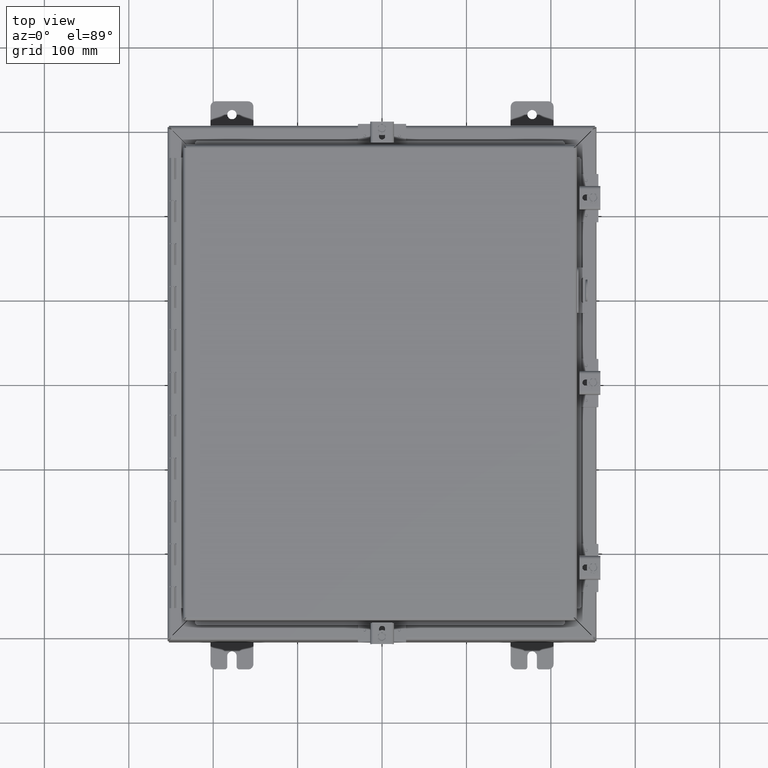
[diagram: clean part render]
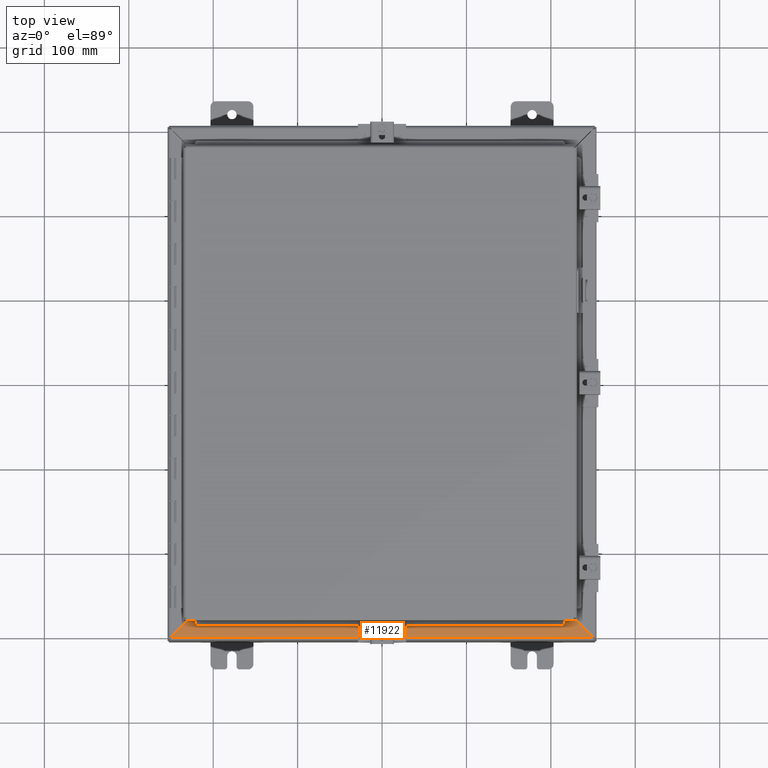
[diagram: same view with one face highlighted and labeled with its STEP entity id]
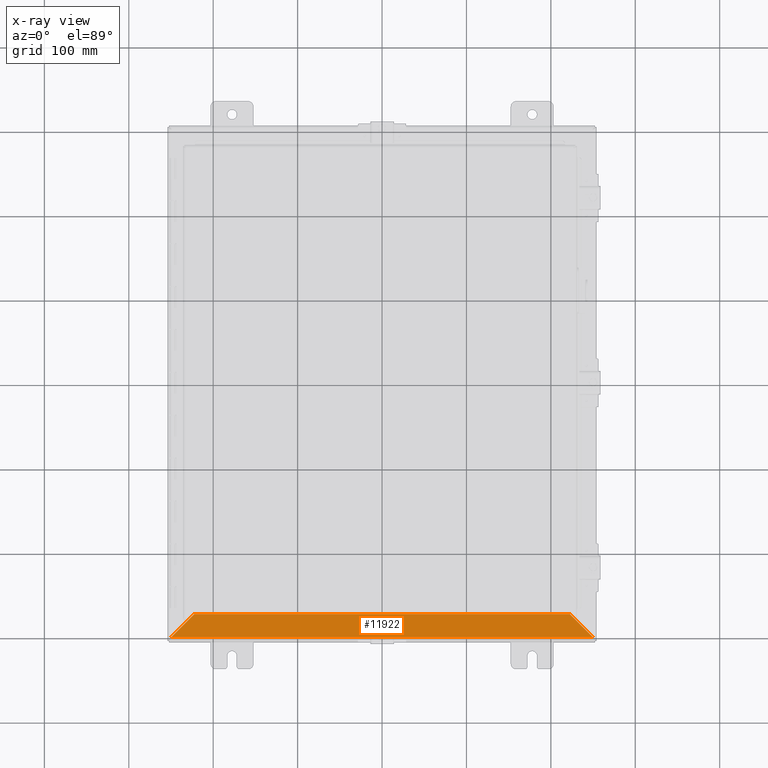
[diagram: x-ray of the same camera — body ghosted, the highlighted face saturated]
A machine part, top view. The second image highlights one B-rep face of the part: STEP entity #11922.
The next image is the same camera in x-ray: the body ghosted, the highlighted face saturated — about 0% of this face is hidden behind the body in this view.
In plain terms, the highlighted planar face has unit normal (-0, -0, -1).
Its self-contained STEP definition (entity closure, byte-faithful):
#1186=PLANE('',#12675);
#1588=FACE_OUTER_BOUND('',#2286,.T.);
#2286=EDGE_LOOP('',(#8650,#8651,#8652,#8653));
#3081=LINE('',#17476,#4160);
#3083=LINE('',#17511,#4162);
#3084=LINE('',#17512,#4163);
#3085=LINE('',#17513,#4164);
#4160=VECTOR('',#13973,17.5137806999101);
#4162=VECTOR('',#13977,19.6527806999101);
#4163=VECTOR('',#13978,1.51250140495802);
#4164=VECTOR('',#13979,1.51250140495802);
#5657=VERTEX_POINT('',#17474);
#5658=VERTEX_POINT('',#17475);
#5665=VERTEX_POINT('',#17509);
#5666=VERTEX_POINT('',#17510);
#6817=EDGE_CURVE('',#5657,#5658,#3081,.T.);
#6825=EDGE_CURVE('',#5665,#5666,#3083,.T.);
#6826=EDGE_CURVE('',#5657,#5666,#3084,.T.);
#6827=EDGE_CURVE('',#5665,#5658,#3085,.T.);
#8650=ORIENTED_EDGE('',*,*,#6825,.T.);
#8651=ORIENTED_EDGE('',*,*,#6826,.F.);
#8652=ORIENTED_EDGE('',*,*,#6817,.T.);
#8653=ORIENTED_EDGE('',*,*,#6827,.F.);
#11922=ADVANCED_FACE('',(#1588),#1186,.F.);
#12675=AXIS2_PLACEMENT_3D('',#17508,#13975,#13976);
#13973=DIRECTION('',(-1.,-1.56987949885448E-16,9.97654610727262E-18));
#13975=DIRECTION('center_axis',(-9.97654610727179E-18,-5.29671495844802E-15,
-1.));
#13976=DIRECTION('ref_axis',(-1.40877373263489E-16,1.,-4.51194637207664E-15));
#13977=DIRECTION('',(1.,1.40037230023149E-16,-9.97654610727252E-18));
#13978=DIRECTION('',(0.707106781186548,-0.707106781186548,2.44650205718945E-15));
#13979=DIRECTION('',(0.707106781186547,0.707106781186547,-2.44626643118222E-15));
#17474=CARTESIAN_POINT('',(8.75689034995503,-10.77775,6.));
#17475=CARTESIAN_POINT('',(-8.75689034995503,-10.77775,6.));
#17476=CARTESIAN_POINT('',(-4.37844517497751,-10.77775,6.));
#17508=CARTESIAN_POINT('Origin',(-8.31910028622545E-16,-11.3685559466454,
6.));
#17509=CARTESIAN_POINT('',(-9.82639034995502,-11.84725,6.));
#17510=CARTESIAN_POINT('',(9.82639034995502,-11.84725,6.));
#17511=CARTESIAN_POINT('',(-1.08938535426471E-15,-11.84725,6.));
#17512=CARTESIAN_POINT('',(9.82639034995502,-11.84725,6.));
#17513=CARTESIAN_POINT('',(-9.82639034995502,-11.84725,6.));